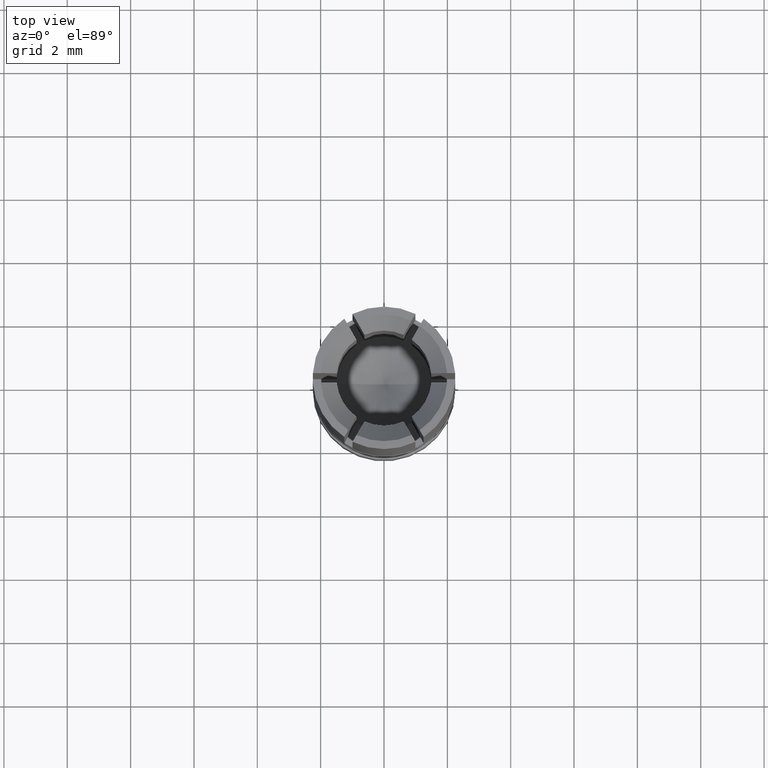
[diagram: clean part render]
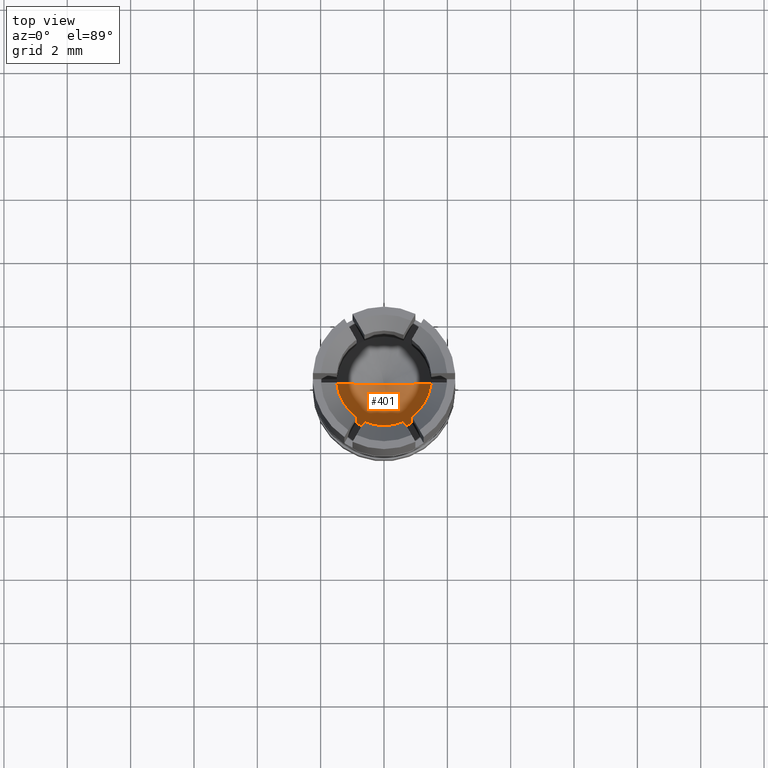
[diagram: same view with one face highlighted and labeled with its STEP entity id]
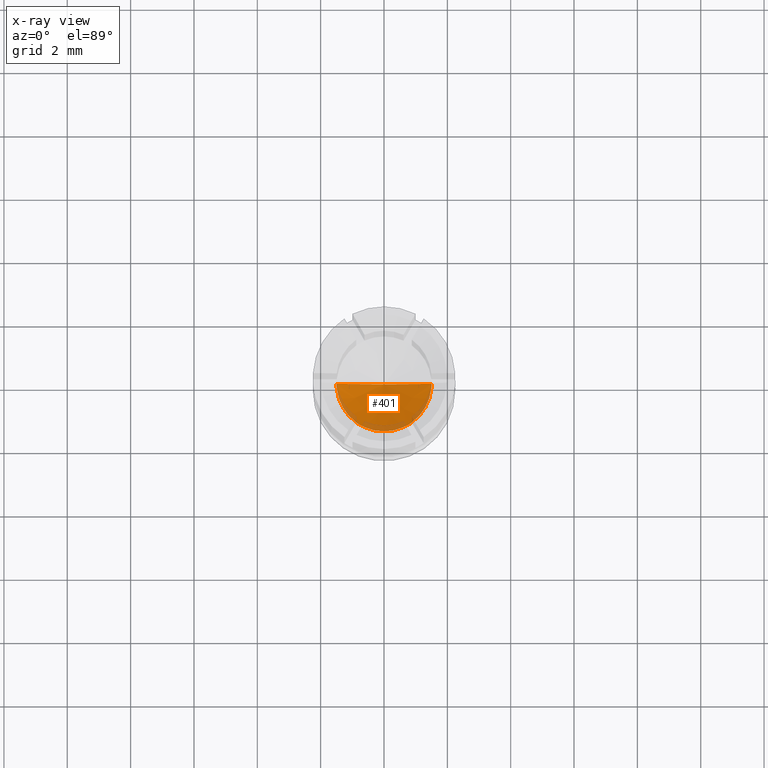
[diagram: x-ray of the same camera — body ghosted, the highlighted face saturated]
A machine part, top view. The second image highlights one B-rep face of the part: STEP entity #401.
The next image is the same camera in x-ray: the body ghosted, the highlighted face saturated — about 13% of this face is hidden behind the body in this view.
In plain terms, the highlighted conical surface has half-angle 59 deg.
Its self-contained STEP definition (entity closure, byte-faithful):
#7 = CARTESIAN_POINT ( 'NONE',  ( 5.421010862427519705E-17, -2.168404344971009854E-16, 349.0000000000000000 ) ) ;
#8 = CARTESIAN_POINT ( 'NONE',  ( 5.421010862427519705E-17, -2.168404344971009854E-16, 348.0987090714589840 ) ) ;
#49 = ORIENTED_EDGE ( 'NONE', *, *, #1795, .F. ) ;
#83 = CARTESIAN_POINT ( 'NONE',  ( 1.492481155659930003, -0.1499999999999999944, 349.0000000000000000 ) ) ;
#124 = EDGE_CURVE ( 'NONE', #1198, #1901, #2161, .T. ) ;
#193 = ORIENTED_EDGE ( 'NONE', *, *, #594, .F. ) ;
#243 = DIRECTION ( 'NONE',  ( -1.000000000000000000, 0.000000000000000000, 0.000000000000000000 ) ) ;
#246 = ORIENTED_EDGE ( 'NONE', *, *, #1113, .F. ) ;
#264 = AXIS2_PLACEMENT_3D ( 'NONE', #655, #2048, #804 ) ;
#278 = AXIS2_PLACEMENT_3D ( 'NONE', #921, #1835, #417 ) ;
#281 = DIRECTION ( 'NONE',  ( -1.000000000000000000, 0.000000000000000000, 0.000000000000000000 ) ) ;
#295 = DIRECTION ( 'NONE',  ( 0.000000000000000000, 0.000000000000000000, -1.000000000000000000 ) ) ;
#329 = DIRECTION ( 'NONE',  ( -1.000000000000000000, 0.000000000000000000, 0.000000000000000000 ) ) ;
#351 = AXIS2_PLACEMENT_3D ( 'NONE', #1842, #1316, #243 ) ;
#357 = AXIS2_PLACEMENT_3D ( 'NONE', #2018, #1527, #329 ) ;
#401 = ADVANCED_FACE ( 'NONE', ( #1786 ), #1263, .F. ) ;
#417 = DIRECTION ( 'NONE',  ( 1.000000000000000000, 0.000000000000000000, 0.000000000000000000 ) ) ;
#436 = VERTEX_POINT ( 'NONE', #780 ) ;
#458 = CIRCLE ( 'NONE', #1008, 1.500000000000000000 ) ;
#518 = CIRCLE ( 'NONE', #2036, 1.500000000000000000 ) ;
#521 = VERTEX_POINT ( 'NONE', #2232 ) ;
#538 = ORIENTED_EDGE ( 'NONE', *, *, #954, .F. ) ;
#541 = EDGE_CURVE ( 'NONE', #2153, #1107, #769, .T. ) ;
#594 = EDGE_CURVE ( 'NONE', #436, #1198, #518, .T. ) ;
#607 = DIRECTION ( 'NONE',  ( -0.8571673000960902122, 1.049727190396455768E-16, 0.5150380759186442559 ) ) ;
#655 = CARTESIAN_POINT ( 'NONE',  ( 5.421010862427519705E-17, -2.168404344971009854E-16, 349.0000000000000000 ) ) ;
#662 = EDGE_LOOP ( 'NONE', ( #49, #1649, #903, #538, #767, #1443, #246, #1971, #193 ) ) ;
#722 = CARTESIAN_POINT ( 'NONE',  ( 5.421010862427519705E-17, -2.168404344971009854E-16, 349.0000000000000000 ) ) ;
#767 = ORIENTED_EDGE ( 'NONE', *, *, #901, .F. ) ;
#769 = CIRCLE ( 'NONE', #264, 1.500000000000000000 ) ;
#775 = CARTESIAN_POINT ( 'NONE',  ( 1.500000000000000000, -2.168404344971009854E-16, 349.0000000000000000 ) ) ;
#780 = CARTESIAN_POINT ( 'NONE',  ( 1.500000000000000000, -2.168404344971009854E-16, 349.0000000000000000 ) ) ;
#804 = DIRECTION ( 'NONE',  ( -1.000000000000000000, 0.000000000000000000, 0.000000000000000000 ) ) ;
#845 = DIRECTION ( 'NONE',  ( 0.000000000000000000, 0.000000000000000000, -1.000000000000000000 ) ) ;
#879 = CARTESIAN_POINT ( 'NONE',  ( 0.6163367672622989124, -1.367526595471060036, 349.0000000000000000 ) ) ;
#901 = EDGE_CURVE ( 'NONE', #521, #2026, #458, .T. ) ;
#903 = ORIENTED_EDGE ( 'NONE', *, *, #541, .F. ) ;
#921 = CARTESIAN_POINT ( 'NONE',  ( 5.421010862427519705E-17, -2.168404344971009854E-16, 349.0000000000000000 ) ) ;
#954 = EDGE_CURVE ( 'NONE', #2026, #2153, #975, .T. ) ;
#969 = LINE ( 'NONE', #1512, #1336 ) ;
#975 = CIRCLE ( 'NONE', #1254, 1.500000000000000000 ) ;
#1008 = AXIS2_PLACEMENT_3D ( 'NONE', #1014, #845, #2205 ) ;
#1014 = CARTESIAN_POINT ( 'NONE',  ( 5.421010862427519705E-17, -2.168404344971009854E-16, 349.0000000000000000 ) ) ;
#1058 = DIRECTION ( 'NONE',  ( 0.000000000000000000, 0.000000000000000000, -1.000000000000000000 ) ) ;
#1064 = CARTESIAN_POINT ( 'NONE',  ( -1.492481155659930003, -0.1499999999999999944, 349.0000000000000000 ) ) ;
#1107 = VERTEX_POINT ( 'NONE', #1562 ) ;
#1113 = EDGE_CURVE ( 'NONE', #1901, #2115, #1616, .T. ) ;
#1198 = VERTEX_POINT ( 'NONE', #83 ) ;
#1218 = AXIS2_PLACEMENT_3D ( 'NONE', #7, #1058, #1396 ) ;
#1254 = AXIS2_PLACEMENT_3D ( 'NONE', #2190, #295, #281 ) ;
#1261 = CIRCLE ( 'NONE', #351, 1.500000000000000000 ) ;
#1263 = CONICAL_SURFACE ( 'NONE', #278, 1.500000000000000000, 1.029744257499999760 ) ;
#1316 = DIRECTION ( 'NONE',  ( 0.000000000000000000, 0.000000000000000000, -1.000000000000000000 ) ) ;
#1336 = VECTOR ( 'NONE', #607, 1000.000000000000114 ) ;
#1396 = DIRECTION ( 'NONE',  ( -1.000000000000000000, 0.000000000000000000, 0.000000000000000000 ) ) ;
#1443 = ORIENTED_EDGE ( 'NONE', *, *, #1881, .F. ) ;
#1512 = CARTESIAN_POINT ( 'NONE',  ( -1.500000000000000000, -3.314341462499799817E-17, 349.0000000000000000 ) ) ;
#1527 = DIRECTION ( 'NONE',  ( 0.000000000000000000, 0.000000000000000000, -1.000000000000000000 ) ) ;
#1562 = CARTESIAN_POINT ( 'NONE',  ( -1.500000000000000000, -3.314341462499799817E-17, 349.0000000000000000 ) ) ;
#1572 = VERTEX_POINT ( 'NONE', #8 ) ;
#1600 = DIRECTION ( 'NONE',  ( -1.000000000000000000, 0.000000000000000000, 0.000000000000000000 ) ) ;
#1616 = CIRCLE ( 'NONE', #1218, 1.500000000000000000 ) ;
#1649 = ORIENTED_EDGE ( 'NONE', *, *, #1799, .T. ) ;
#1763 = LINE ( 'NONE', #775, #2233 ) ;
#1786 = FACE_OUTER_BOUND ( 'NONE', #662, .T. ) ;
#1795 = EDGE_CURVE ( 'NONE', #1572, #436, #1763, .T. ) ;
#1799 = EDGE_CURVE ( 'NONE', #1572, #1107, #969, .T. ) ;
#1835 = DIRECTION ( 'NONE',  ( 0.000000000000000000, 0.000000000000000000, 1.000000000000000000 ) ) ;
#1842 = CARTESIAN_POINT ( 'NONE',  ( 5.421010862427519705E-17, -2.168404344971009854E-16, 349.0000000000000000 ) ) ;
#1881 = EDGE_CURVE ( 'NONE', #2115, #521, #1261, .T. ) ;
#1901 = VERTEX_POINT ( 'NONE', #2166 ) ;
#1921 = DIRECTION ( 'NONE',  ( 0.000000000000000000, 0.000000000000000000, -1.000000000000000000 ) ) ;
#1971 = ORIENTED_EDGE ( 'NONE', *, *, #124, .F. ) ;
#2018 = CARTESIAN_POINT ( 'NONE',  ( 5.421010862427519705E-17, -2.168404344971009854E-16, 349.0000000000000000 ) ) ;
#2026 = VERTEX_POINT ( 'NONE', #2174 ) ;
#2036 = AXIS2_PLACEMENT_3D ( 'NONE', #722, #1921, #1600 ) ;
#2048 = DIRECTION ( 'NONE',  ( 0.000000000000000000, 0.000000000000000000, -1.000000000000000000 ) ) ;
#2115 = VERTEX_POINT ( 'NONE', #879 ) ;
#2153 = VERTEX_POINT ( 'NONE', #1064 ) ;
#2161 = CIRCLE ( 'NONE', #357, 1.500000000000000000 ) ;
#2166 = CARTESIAN_POINT ( 'NONE',  ( 0.8761443883976299807, -1.217526595471060125, 349.0000000000000000 ) ) ;
#2174 = CARTESIAN_POINT ( 'NONE',  ( -0.8761443883976310909, -1.217526595471060125, 349.0000000000000000 ) ) ;
#2187 = DIRECTION ( 'NONE',  ( 0.8571673000960902122, 0.000000000000000000, 0.5150380759186442559 ) ) ;
#2190 = CARTESIAN_POINT ( 'NONE',  ( 5.421010862427519705E-17, -2.168404344971009854E-16, 349.0000000000000000 ) ) ;
#2205 = DIRECTION ( 'NONE',  ( -1.000000000000000000, 0.000000000000000000, 0.000000000000000000 ) ) ;
#2232 = CARTESIAN_POINT ( 'NONE',  ( -0.6163367672622999116, -1.367526595471060036, 349.0000000000000000 ) ) ;
#2233 = VECTOR ( 'NONE', #2187, 1000.000000000000114 ) ;